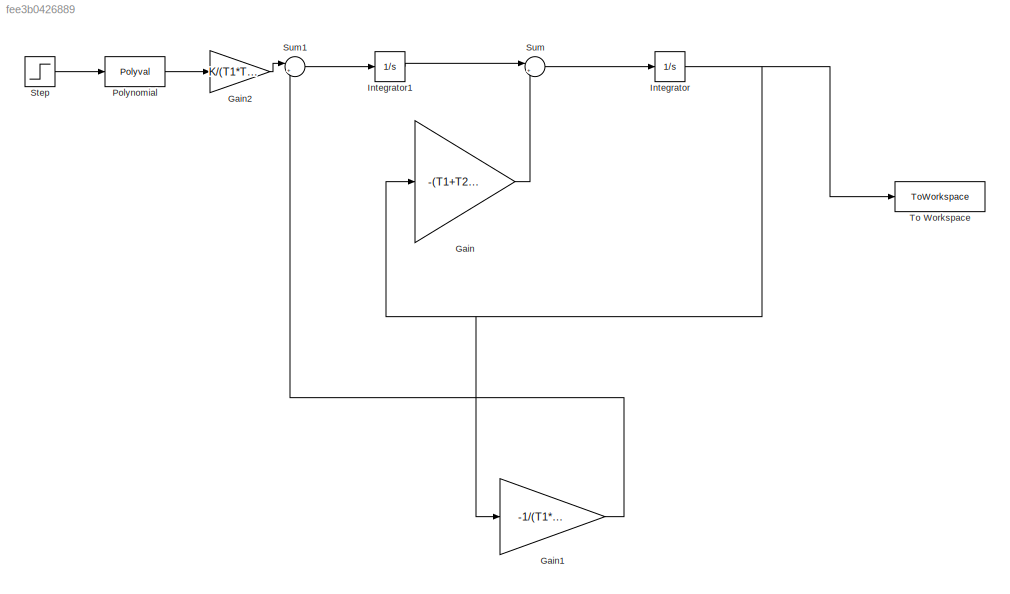
MODEL slx_fee3b0426889
KIND model
CONFIG AbsTol = auto
CONFIG EnableMultiTasking = off
CONFIG FixedStep = auto
CONFIG MaxStep = auto
CONFIG MinStep = auto
CONFIG RelTol = 1e-3
CONFIG SampleTimeConstraint = Unconstrained
CONFIG SolverName = VariableStepAuto
CONFIG StartTime = 0.0
CONFIG StopTime = 100.0
WORKSPACE source: mxarray member
WORKSPACE K: Simulink.Parameter (value not decoded)
WORKSPACE T1: Simulink.Parameter (value not decoded)
WORKSPACE T2: Simulink.Parameter (value not decoded)
WORKSPACE a1: Simulink.Parameter (value not decoded)
WORKSPACE a2: Simulink.Parameter (value not decoded)
WORKSPACE a3: Simulink.Parameter (value not decoded)
WORKSPACE a4: Simulink.Parameter (value not decoded)
BLOCK [Gain] Gain
  Gain = -(T1+T2)/(T1*T2)
BLOCK [Gain] Gain1
  Gain = -1/(T1*T2)
BLOCK [Gain] Gain2
  Gain = K/(T1*T2)
BLOCK [Integrator] Integrator
BLOCK [Integrator] Integrator1
BLOCK [Polyval] Polynomial
  Coefs = [a4,a3,a2,a1]
BLOCK [Step] Step
  SampleTime = 0
BLOCK [Sum] Sum
  Inputs = |++
BLOCK [Sum] Sum1
  Inputs = |++
BLOCK [ToWorkspace] To Workspace
  FixptAsFi = on
  MaxDataPoints = inf
  SampleTime = -1
  SaveFormat = Structure With Time
  VariableName = test
LINE Gain1:1 -> Sum1:2
LINE Gain2:1 -> Sum1:1
LINE Gain:1 -> Sum:2
LINE Integrator1:1 -> Sum:1
NET Integrator:1 -> Gain1:1, Gain:1, To Workspace:1
LINE Polynomial:1 -> Gain2:1
LINE Step:1 -> Polynomial:1
LINE Sum1:1 -> Integrator1:1
LINE Sum:1 -> Integrator:1
note: NET lines group one-source signal fan-out (src -> all destinations, sorted); 1:1 wires keep LINE
